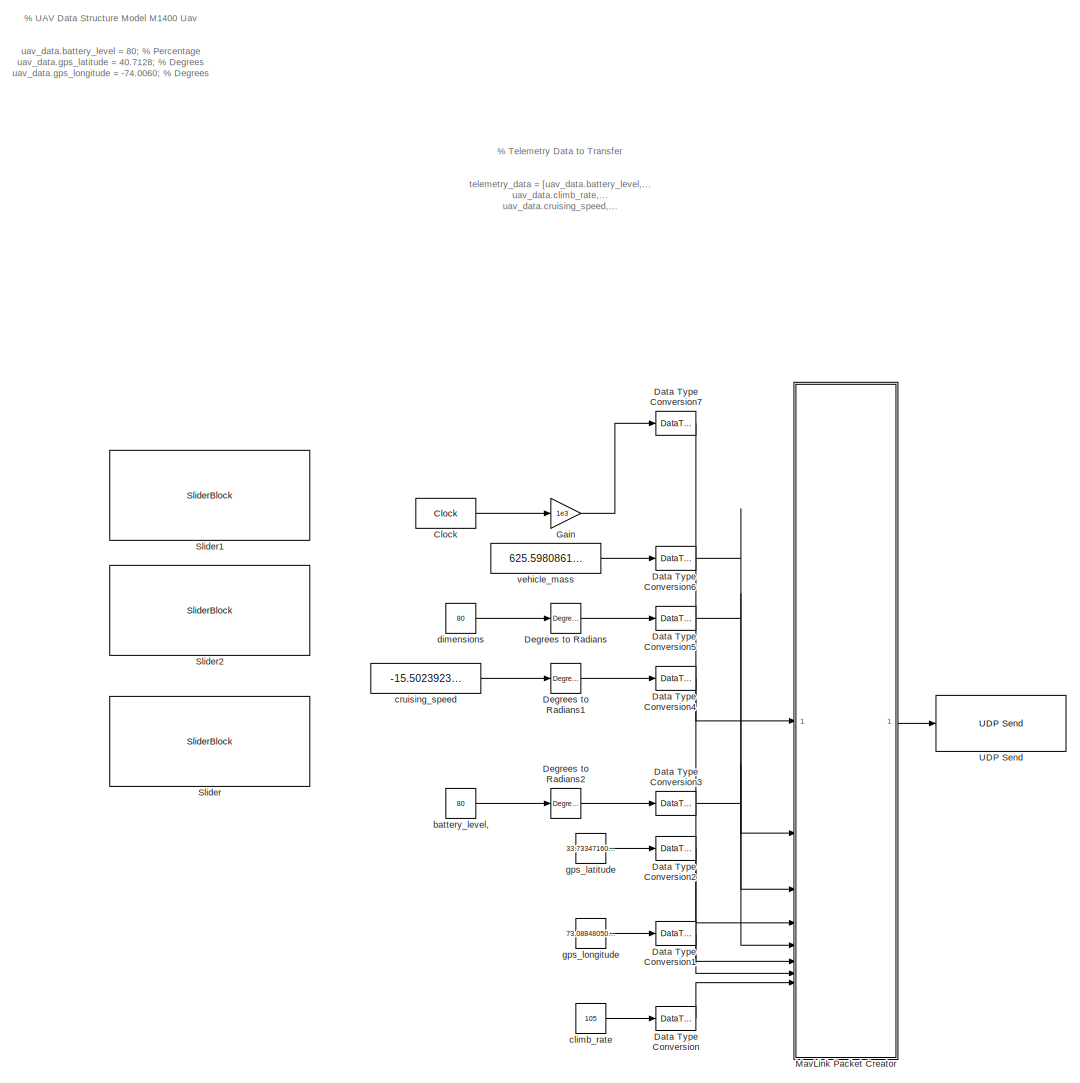
[diagram: root canvas - part 1/1, most of the canvas]
MODEL slx_d57a37bccbb8
KIND model
CONFIG AbsTol = auto
CONFIG EnableMultiTasking = off
CONFIG FixedStep = auto
CONFIG MaxStep = auto
CONFIG MinStep = auto
CONFIG RelTol = 1e-3
CONFIG SampleTimeConstraint = Unconstrained
CONFIG SolverName = FixedStepAuto
CONFIG StartTime = 0.0
CONFIG StopTime = inf
BLOCK [Clock] Clock
  Decimation = 3
  DisplayTime = on
BLOCK [DataTypeConversion] Data Type Conversion
  RndMeth = Floor
  SaturateOnIntegerOverflow = off
BLOCK [DataTypeConversion] Data Type Conversion1
  RndMeth = Floor
  SaturateOnIntegerOverflow = off
BLOCK [DataTypeConversion] Data Type Conversion2
  RndMeth = Floor
  SaturateOnIntegerOverflow = off
BLOCK [DataTypeConversion] Data Type Conversion3
  RndMeth = Floor
  SaturateOnIntegerOverflow = off
BLOCK [DataTypeConversion] Data Type Conversion4
  RndMeth = Floor
  SaturateOnIntegerOverflow = off
BLOCK [DataTypeConversion] Data Type Conversion5
  RndMeth = Floor
  SaturateOnIntegerOverflow = off
BLOCK [DataTypeConversion] Data Type Conversion6
  RndMeth = Floor
  SaturateOnIntegerOverflow = off
BLOCK [DataTypeConversion] Data Type Conversion7
  RndMeth = Floor
  SaturateOnIntegerOverflow = off
BLOCK [Reference] Degrees to Radians  REF=simulink_extras/Transformations/Degrees to
Radians
  SourceBlock = simulink_extras/Transformations/Degrees to\nRadians
  SourceType = DegreesToRadians
BLOCK [Reference] Degrees to Radians1  REF=simulink_extras/Transformations/Degrees to
Radians
  SourceBlock = simulink_extras/Transformations/Degrees to\nRadians
  SourceType = DegreesToRadians
BLOCK [Reference] Degrees to Radians2  REF=simulink_extras/Transformations/Degrees to
Radians
  SourceBlock = simulink_extras/Transformations/Degrees to\nRadians
  SourceType = DegreesToRadians
BLOCK [Gain] Gain
  Gain = 1e3
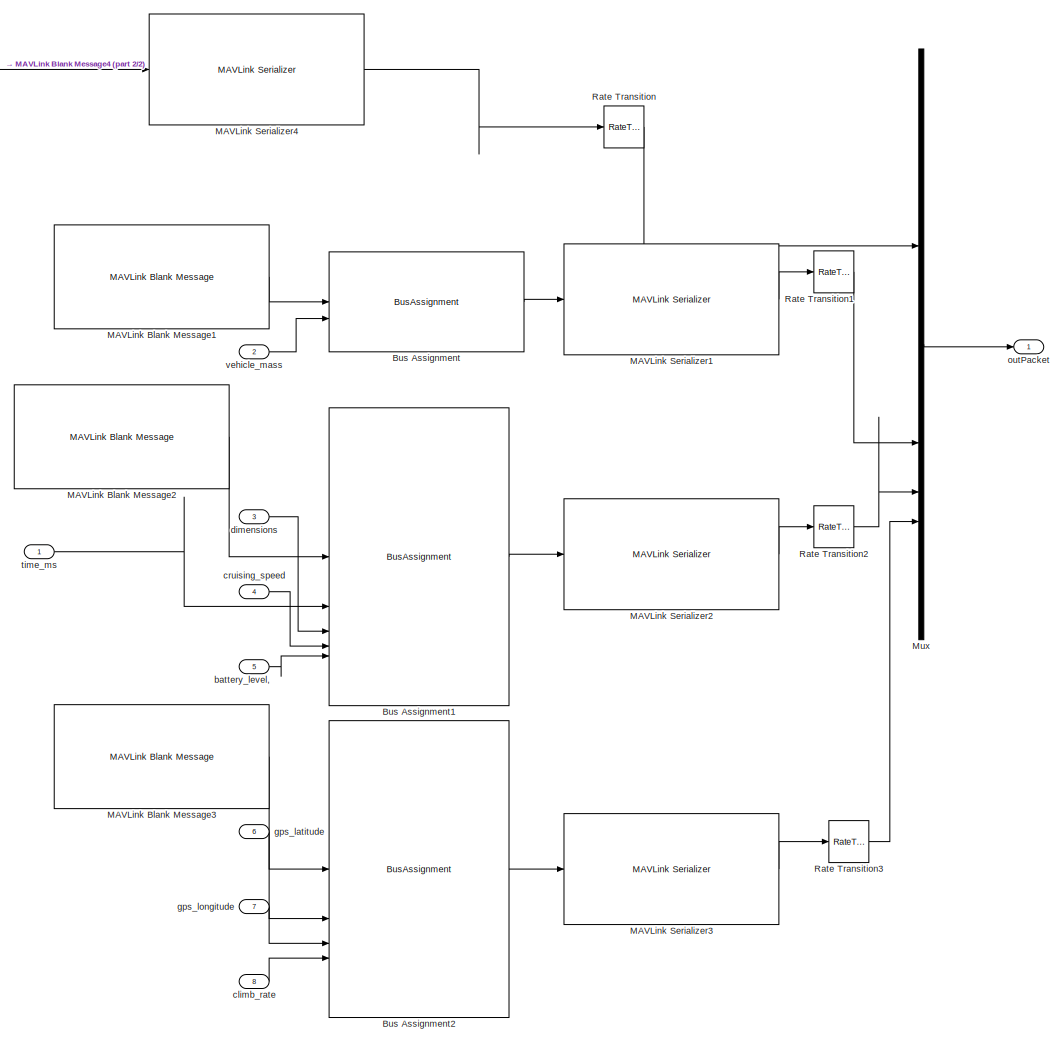
[diagram: MavLink Packet Creator - part 1/2, most of the canvas]
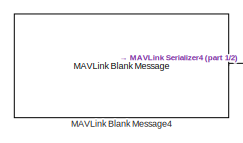
[diagram: MavLink Packet Creator - part 2/2, top left region]
BLOCK [SubSystem] MavLink Packet Creator
BLOCK [BusAssignment] MavLink Packet Creator/Bus Assignment
  AssignedSignals = Payload.altitude_amsl
BLOCK [BusAssignment] MavLink Packet Creator/Bus Assignment1
  AssignedSignals = Payload.time_boot_ms,Payload.roll,Payload.pitch,Payload.yaw
BLOCK [BusAssignment] MavLink Packet Creator/Bus Assignment2
  AssignedSignals = Payload.lat,Payload.lon,Payload.alt
BLOCK [Reference] MavLink Packet Creator/MAVLink Blank Message1  REF=uavmavlinklib/MAVLink Blank Message
  SourceBlock = uavmavlinklib/MAVLink Blank Message
  SourceType = MAVLink Blank Message
BLOCK [Reference] MavLink Packet Creator/MAVLink Blank Message2  REF=uavmavlinklib/MAVLink Blank Message
  SourceBlock = uavmavlinklib/MAVLink Blank Message
  SourceType = MAVLink Blank Message
BLOCK [Reference] MavLink Packet Creator/MAVLink Blank Message3  REF=uavmavlinklib/MAVLink Blank Message
  SourceBlock = uavmavlinklib/MAVLink Blank Message
  SourceType = MAVLink Blank Message
BLOCK [Reference] MavLink Packet Creator/MAVLink Blank Message4  REF=uavmavlinklib/MAVLink Blank Message
  SourceBlock = uavmavlinklib/MAVLink Blank Message
  SourceType = MAVLink Blank Message
BLOCK [Reference] MavLink Packet Creator/MAVLink Serializer1  REF=uavmavlinklib/MAVLink Serializer
  SourceBlock = uavmavlinklib/MAVLink Serializer
  SourceType = MAVLink Serializer
BLOCK [Reference] MavLink Packet Creator/MAVLink Serializer2  REF=uavmavlinklib/MAVLink Serializer
  SourceBlock = uavmavlinklib/MAVLink Serializer
  SourceType = MAVLink Serializer
BLOCK [Reference] MavLink Packet Creator/MAVLink Serializer3  REF=uavmavlinklib/MAVLink Serializer
  SourceBlock = uavmavlinklib/MAVLink Serializer
  SourceType = MAVLink Serializer
BLOCK [Reference] MavLink Packet Creator/MAVLink Serializer4  REF=uavmavlinklib/MAVLink Serializer
  SourceBlock = uavmavlinklib/MAVLink Serializer
  SourceType = MAVLink Serializer
BLOCK [Mux] MavLink Packet Creator/Mux
  DisplayOption = bar
BLOCK [RateTransition] MavLink Packet Creator/Rate Transition
BLOCK [RateTransition] MavLink Packet Creator/Rate Transition1
BLOCK [RateTransition] MavLink Packet Creator/Rate Transition2
BLOCK [RateTransition] MavLink Packet Creator/Rate Transition3
BLOCK [Inport] MavLink Packet Creator/battery_level,
  Port = 5
BLOCK [Inport] MavLink Packet Creator/climb_rate
  Port = 8
BLOCK [Inport] MavLink Packet Creator/cruising_speed
  Port = 4
BLOCK [Inport] MavLink Packet Creator/dimensions
  Port = 3
BLOCK [Inport] MavLink Packet Creator/gps_latitude
  Port = 6
BLOCK [Inport] MavLink Packet Creator/gps_longitude
  Port = 7
BLOCK [Outport] MavLink Packet Creator/outPacket
BLOCK [Inport] MavLink Packet Creator/time_ms
BLOCK [Inport] MavLink Packet Creator/vehicle_mass
  Port = 2
BLOCK [SliderBlock] Slider
  ScaleMax = 1000
BLOCK [SliderBlock] Slider1
  ScaleMax = 180
  ScaleMin = -180
BLOCK [SliderBlock] Slider2
  ScaleMax = 180
  ScaleMin = -180
BLOCK [Reference] UDP Send  REF=instrumentlib/UDP Send
  SourceBlock = instrumentlib/UDP Send
  SourceType = instrument.system.UDPSend
BLOCK [Constant] battery_level,
  SampleTime = -1
  Value = 80
BLOCK [Constant] climb_rate
  SampleTime = -1
  Value = 105
BLOCK [Constant] cruising_speed
  SampleTime = -1
  Value = -15.50239234449762
BLOCK [Constant] dimensions
  SampleTime = -1
  Value = 80
BLOCK [Constant] gps_latitude
  SampleTime = -1
  Value = 33.73347160969274e7
BLOCK [Constant] gps_longitude
  SampleTime = -1
  Value = 73.08848050871671e7
BLOCK [Constant] vehicle_mass
  SampleTime = -1
  Value = 625.5980861244019
ANNOTATION (root): % Telemetry Data to Transfer telemetry_data = [uav_data.battery_level,... uav_data.climb_rate,... uav_data.cruising_speed,... uav_data.gps_latitude,... uav_data.gps_longitude,... uav_data.vehicle_mass,... uav_data.dimensions,... uav_data.max_payload_mass];
ANNOTATION (root): % UAV Data Structure Model M1400 Uav uav_data.battery_level = 80; % Percentage uav_data.gps_latitude = 40.7128; % Degrees uav_data.gps_longitude = -74.0060; % Degrees uav_data.altitude = 100; % Meters uav_data.climb_rate = 7.5; % m/s uav_data.cruising_speed = 15.0; % m/s uav_data.peak_thrust = 118; % N uav_data.vehicle_mass = 2.65; % Kg uav_data.recommended_payload_mass = 0.80; % Kg uav_data.max_p...<+498ch>
LINE Clock:1 -> Gain:1
LINE Data Type Conversion1:1 -> MavLink Packet Creator:7
LINE Data Type Conversion2:1 -> MavLink Packet Creator:6
LINE Data Type Conversion3:1 -> MavLink Packet Creator:5
LINE Data Type Conversion4:1 -> MavLink Packet Creator:4
LINE Data Type Conversion5:1 -> MavLink Packet Creator:3
LINE Data Type Conversion6:1 -> MavLink Packet Creator:2
LINE Data Type Conversion7:1 -> MavLink Packet Creator:1
LINE Data Type Conversion:1 -> MavLink Packet Creator:8
LINE Degrees to Radians1:1 -> Data Type Conversion4:1
LINE Degrees to Radians2:1 -> Data Type Conversion3:1
LINE Degrees to Radians:1 -> Data Type Conversion5:1
LINE Gain:1 -> Data Type Conversion7:1
LINE MavLink Packet Creator/Bus Assignment1:1 -> MavLink Packet Creator/MAVLink Serializer2:1
LINE MavLink Packet Creator/Bus Assignment2:1 -> MavLink Packet Creator/MAVLink Serializer3:1
LINE MavLink Packet Creator/Bus Assignment:1 -> MavLink Packet Creator/MAVLink Serializer1:1
LINE MavLink Packet Creator/MAVLink Blank Message1:1 -> MavLink Packet Creator/Bus Assignment:1
LINE MavLink Packet Creator/MAVLink Blank Message2:1 -> MavLink Packet Creator/Bus Assignment1:1
LINE MavLink Packet Creator/MAVLink Blank Message3:1 -> MavLink Packet Creator/Bus Assignment2:1
LINE MavLink Packet Creator/MAVLink Blank Message4:1 -> MavLink Packet Creator/MAVLink Serializer4:1
LINE MavLink Packet Creator/MAVLink Serializer1:1 -> MavLink Packet Creator/Rate Transition1:1
LINE MavLink Packet Creator/MAVLink Serializer2:1 -> MavLink Packet Creator/Rate Transition2:1
LINE MavLink Packet Creator/MAVLink Serializer3:1 -> MavLink Packet Creator/Rate Transition3:1
LINE MavLink Packet Creator/MAVLink Serializer4:1 -> MavLink Packet Creator/Rate Transition:1
LINE MavLink Packet Creator/Mux:1 -> MavLink Packet Creator/outPacket:1
LINE MavLink Packet Creator/Rate Transition1:1 -> MavLink Packet Creator/Mux:2
LINE MavLink Packet Creator/Rate Transition2:1 -> MavLink Packet Creator/Mux:3
LINE MavLink Packet Creator/Rate Transition3:1 -> MavLink Packet Creator/Mux:4
LINE MavLink Packet Creator/Rate Transition:1 -> MavLink Packet Creator/Mux:1
LINE MavLink Packet Creator/battery_level,:1 -> MavLink Packet Creator/Bus Assignment1:5
LINE MavLink Packet Creator/climb_rate:1 -> MavLink Packet Creator/Bus Assignment2:4
LINE MavLink Packet Creator/cruising_speed:1 -> MavLink Packet Creator/Bus Assignment1:4
LINE MavLink Packet Creator/dimensions:1 -> MavLink Packet Creator/Bus Assignment1:3
LINE MavLink Packet Creator/gps_latitude:1 -> MavLink Packet Creator/Bus Assignment2:2
LINE MavLink Packet Creator/gps_longitude:1 -> MavLink Packet Creator/Bus Assignment2:3
LINE MavLink Packet Creator/time_ms:1 -> MavLink Packet Creator/Bus Assignment1:2
LINE MavLink Packet Creator/vehicle_mass:1 -> MavLink Packet Creator/Bus Assignment:2
LINE MavLink Packet Creator:1 -> UDP Send:1
LINE battery_level,:1 -> Degrees to Radians2:1
LINE climb_rate:1 -> Data Type Conversion:1
LINE cruising_speed:1 -> Degrees to Radians1:1
LINE dimensions:1 -> Degrees to Radians:1
LINE gps_latitude:1 -> Data Type Conversion2:1
LINE gps_longitude:1 -> Data Type Conversion1:1
LINE vehicle_mass:1 -> Data Type Conversion6:1
